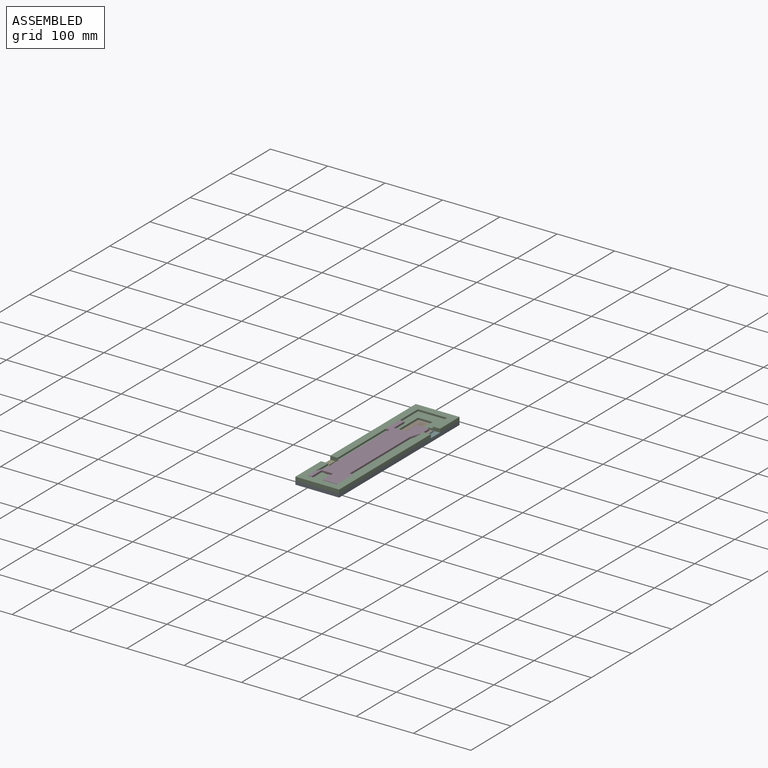
[diagram: assembled view]
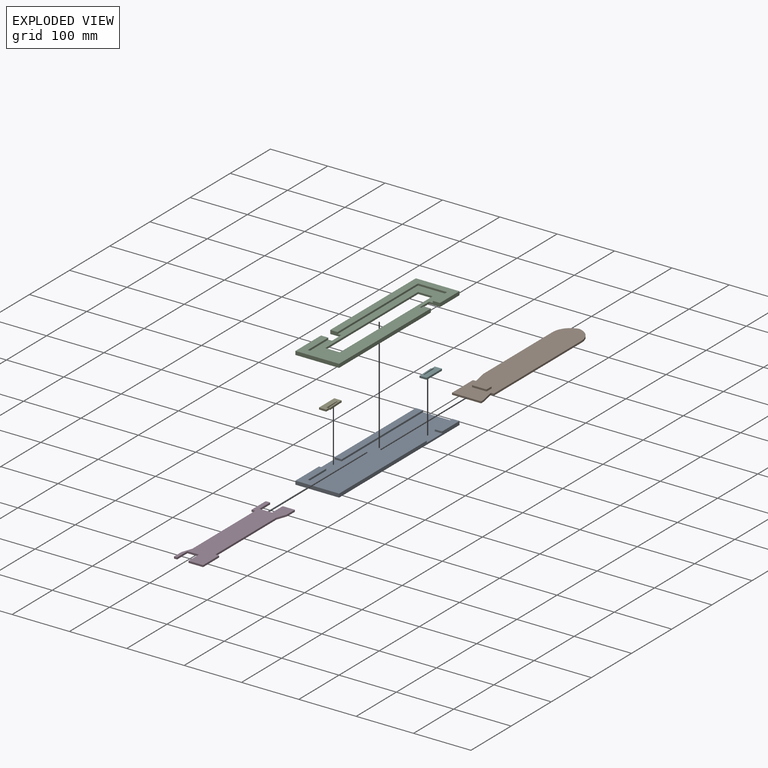
[diagram: exploded view]
GUIDED TOUR — MATED ASSEMBLY (Onshape document 58f78aaa9ea4b90f86e52590, AutoMate assembly 58f78aaa9ea4b90f86e52590_932517b646316d9960da9e35_be1da2eec5c24967967862c9_default)

This assembly has 6 components, labeled P0..P5 below (a component is one placed occurrence of a part; the same part can appear more than once), held together by 5 mates. A mate is a constraint between two components; its type names the relative motion it leaves free:
  FASTENED — locks the two components together rigidly (no relative motion),
  SLIDER — leaves translation along the listed axis free.
Axis/direction vectors are unit vectors and 'through' points are millimeter coordinates, both in the assembly's world frame.

MATES
  1. FASTENED "Fastened 3": P4 <-> P0, direction (0.000, 1.000, 0.000) through (-108.01, -219.98, -332.49) mm
  2. SLIDER "Slider 1": P3 <-> P2, axis (0.000, -1.000, 0.000) through (-63.56, -303.13, -326.14) mm
  3. FASTENED "Fastened 2": P5 <-> P0, direction (0.000, -1.000, 0.000) through (-44.51, -98.53, -332.49) mm
  4. SLIDER "Slider 2": P0 <-> P1, axis (0.000, 1.000, 0.000) through (-76.26, -304.06, -332.49) mm
  5. FASTENED "Fastened 1": P0 <-> P2, direction (0.000, 0.000, 1.000) through (-76.26, -316.76, -330.90) mm

ASSEMBLY ORDER
  1. P0 — the base component [order verified]
  2. P4 [order verified]
  3. P5 [order verified]
  4. P1 [order verified]
  5. P2 [order verified]
  6. P3 [order verified]
Order-tag legend:
  [order verified] — this step's position reverses a verified removal order: the component was checked to insert without passing through the ones already placed.

Of the 6 components, 1 carries the full construction recipe — the FeatureScript program that regenerates the part's solid from scratch; the rest are supplied as boundary geometry only.
Each toured component is shown spotlighted twice — in the assembled view, then in the exploded view, where a leader line traces a displaced component back to its assembled socket (saturated green if recipe-attached, orange if geometry-only; every other component desaturated gray) — followed by its recipe or geometry summary and the mates that hold it.
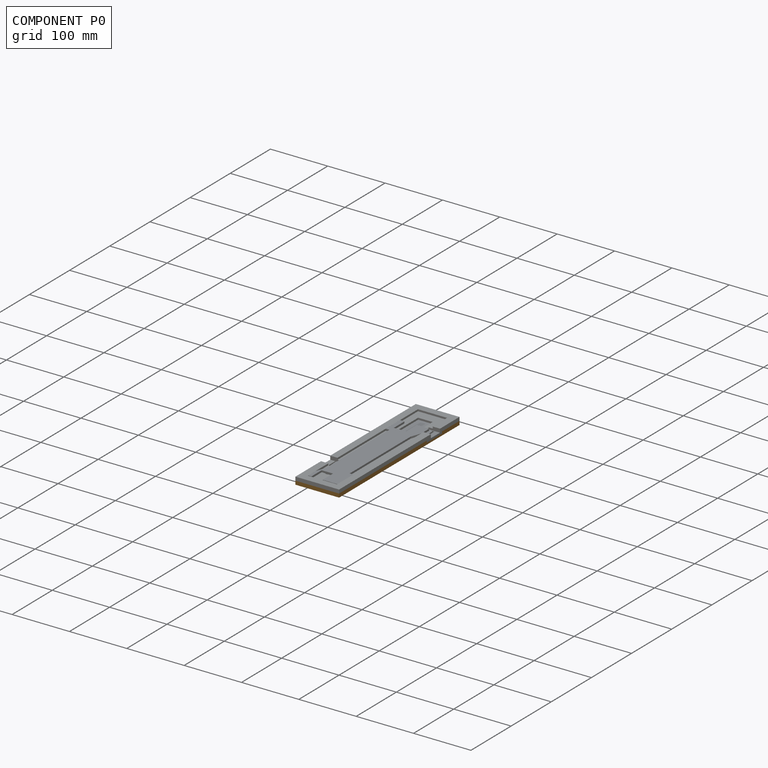
[diagram: component P0 — assembled]
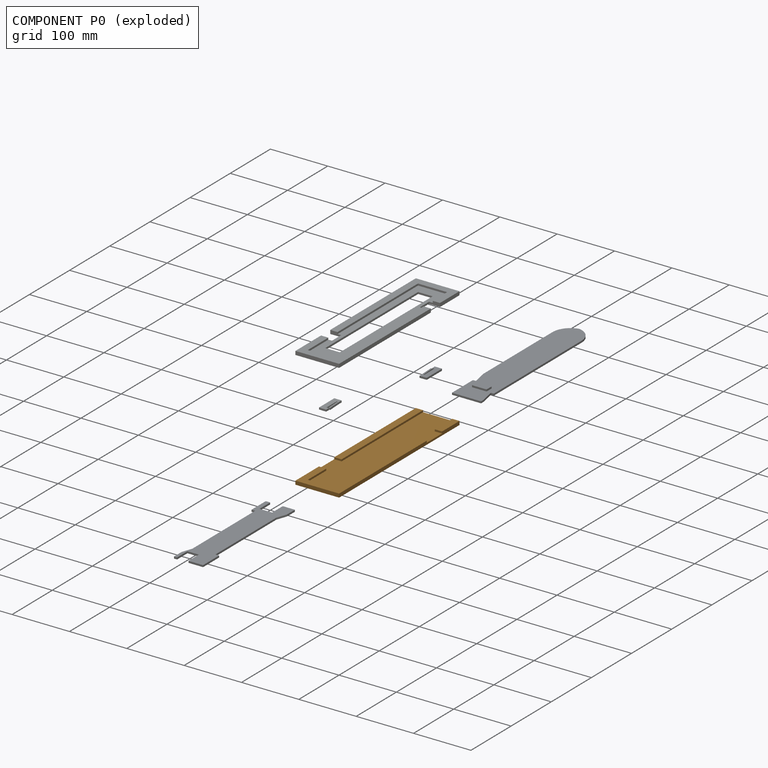
[diagram: component P0 — exploded]
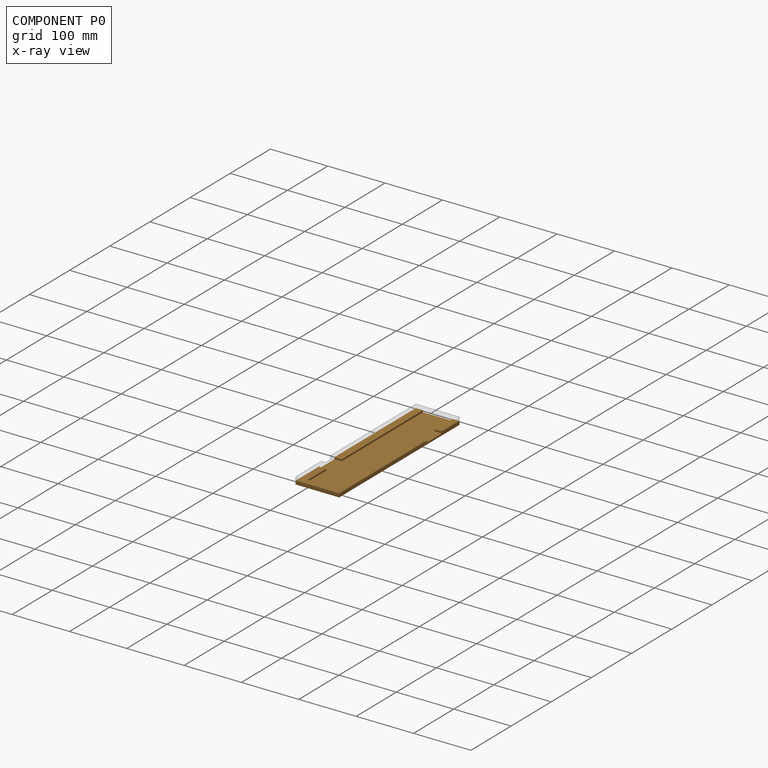
[diagram: component P0 — x-ray view]
COMPONENT P0 — geometry summary (no construction recipe available for this part):
  bounding box: 299.7 x 76.2 x 6.4 mm
  B-rep topology: 1 solid, 18 faces, 96 edges
  volume: 95659 mm^3 (66% of its bounding box)
Held by: FASTENED mate "Fastened 3" to P4; FASTENED mate "Fastened 2" to P5; SLIDER mate "Slider 2" to P1; FASTENED mate "Fastened 1" to P2.
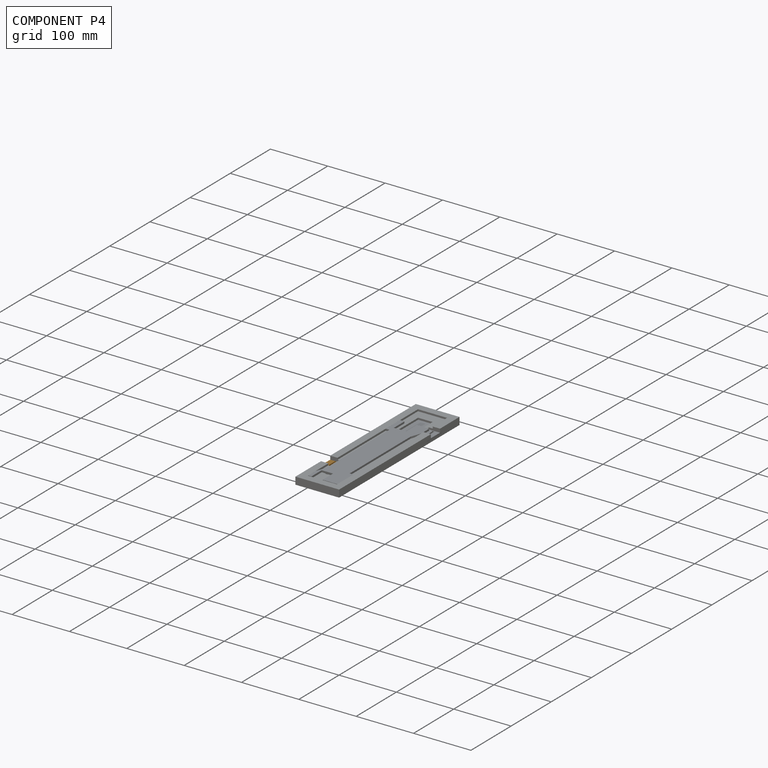
[diagram: component P4 — assembled]
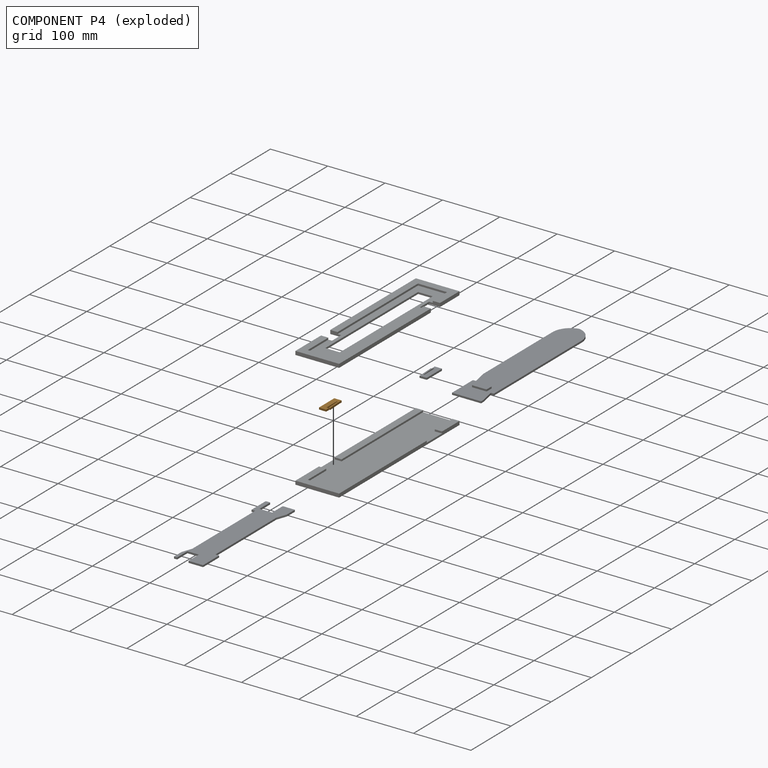
[diagram: component P4 — exploded]
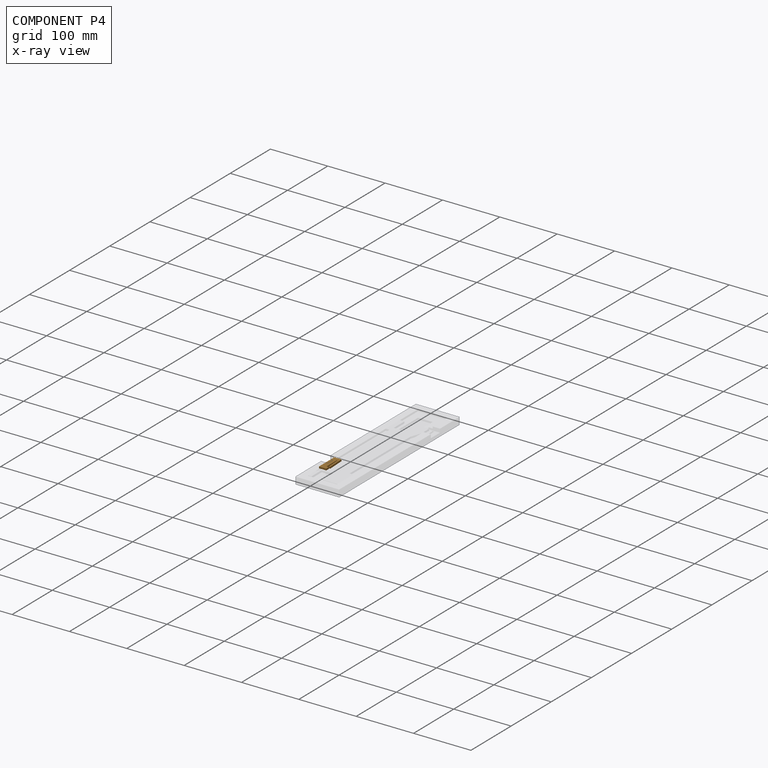
[diagram: component P4 — x-ray view]
COMPONENT P4 — geometry summary (no construction recipe available for this part):
  bounding box: 38.1 x 14.0 x 3.2 mm
  B-rep topology: 1 solid, 45 faces, 258 edges
  volume: 1413 mm^3 (83% of its bounding box)
  symmetry: mirror-symmetric across its z mid-plane
Held by: FASTENED mate "Fastened 3" to P0.
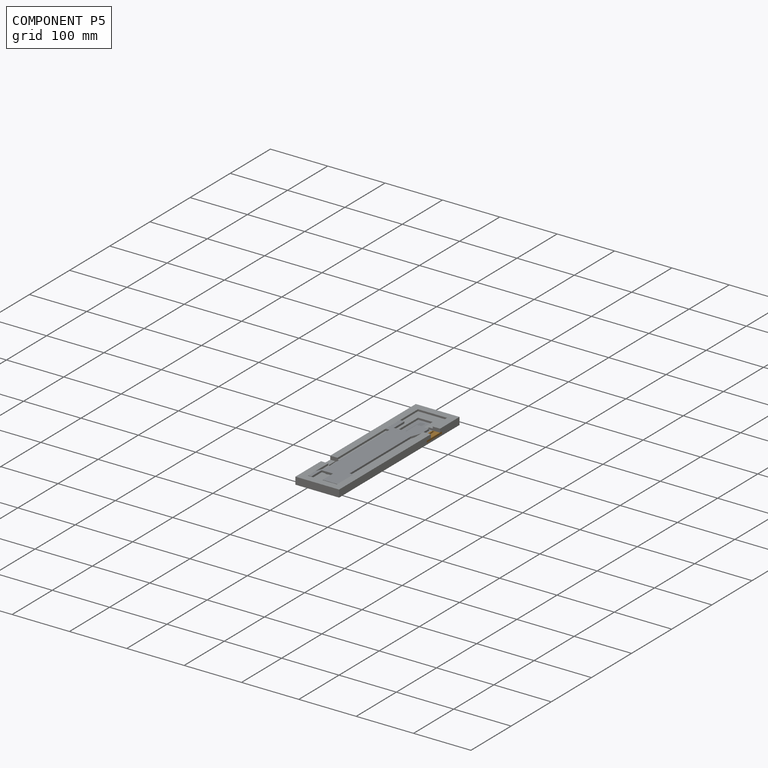
[diagram: component P5 — assembled]
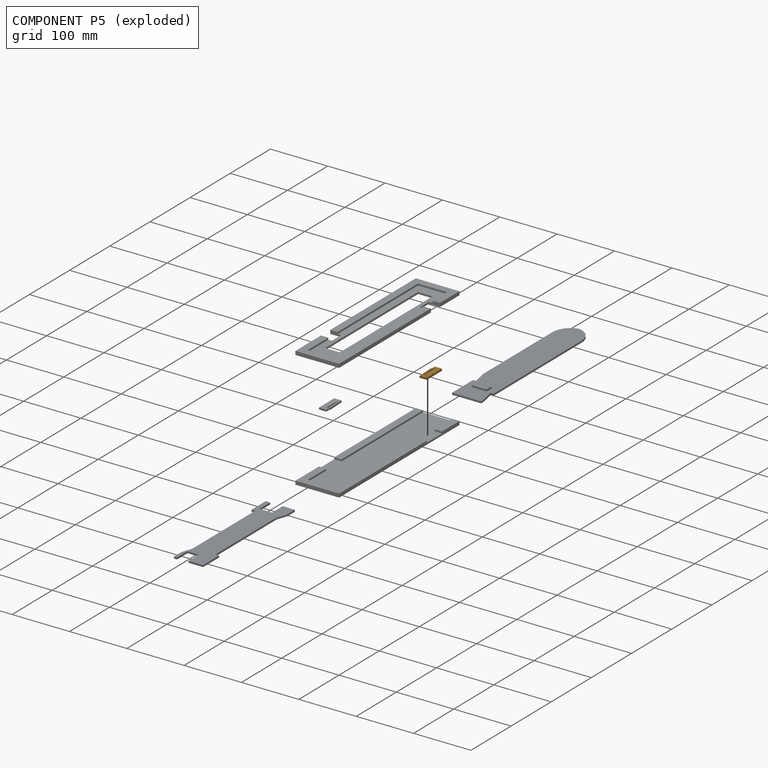
[diagram: component P5 — exploded]
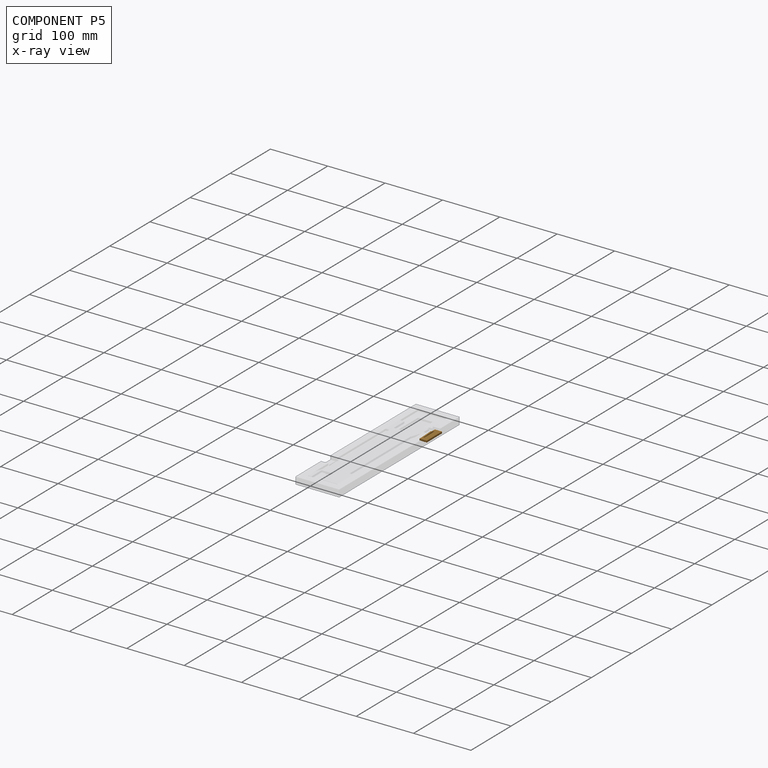
[diagram: component P5 — x-ray view]
COMPONENT P5 — geometry summary (no construction recipe available for this part):
  bounding box: 38.1 x 14.0 x 3.2 mm
  B-rep topology: 1 solid, 45 faces, 258 edges
  volume: 1413 mm^3 (83% of its bounding box)
  symmetry: mirror-symmetric across its z mid-plane
Held by: FASTENED mate "Fastened 2" to P0.
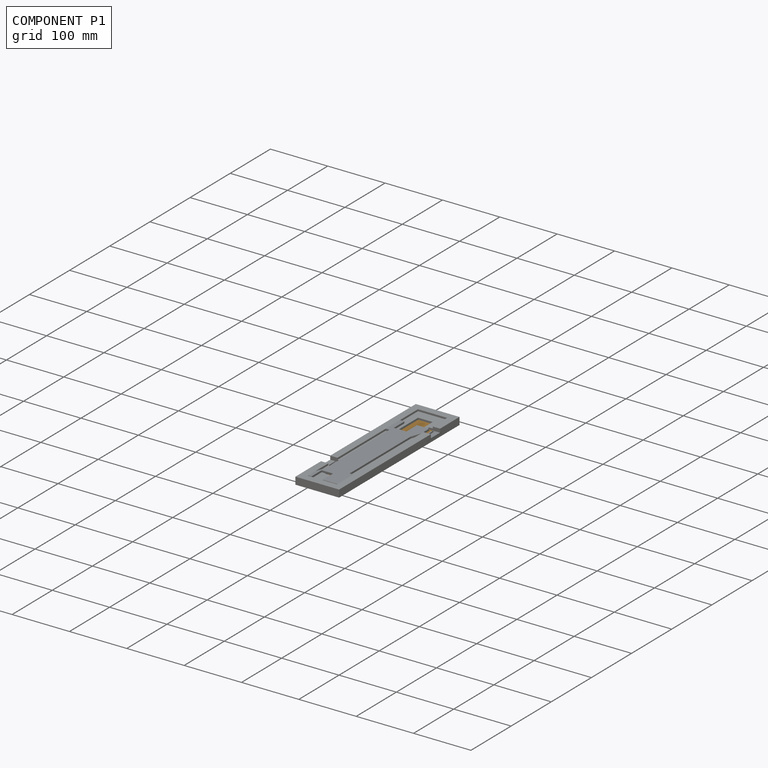
[diagram: component P1 — assembled]
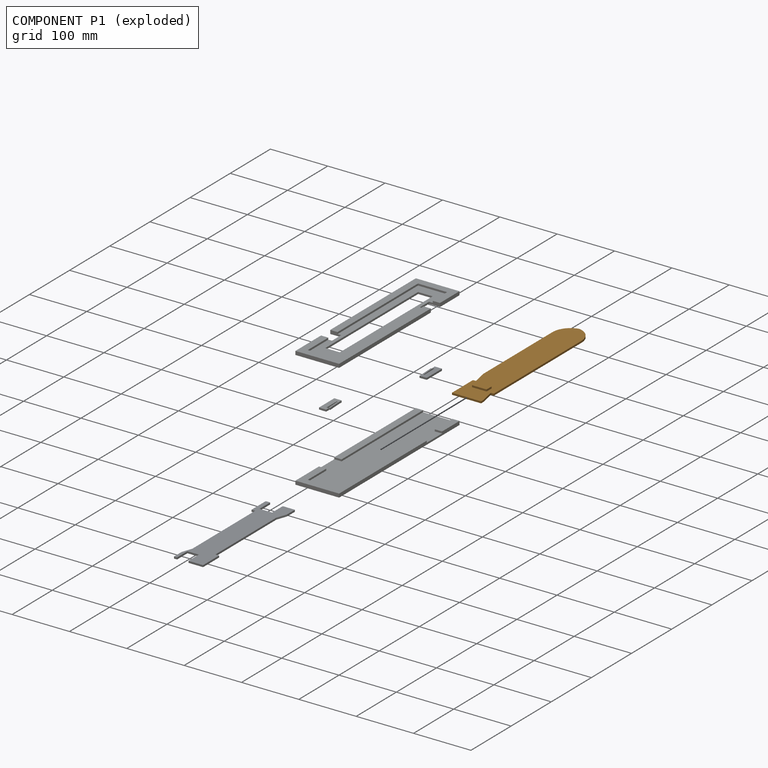
[diagram: component P1 — exploded]
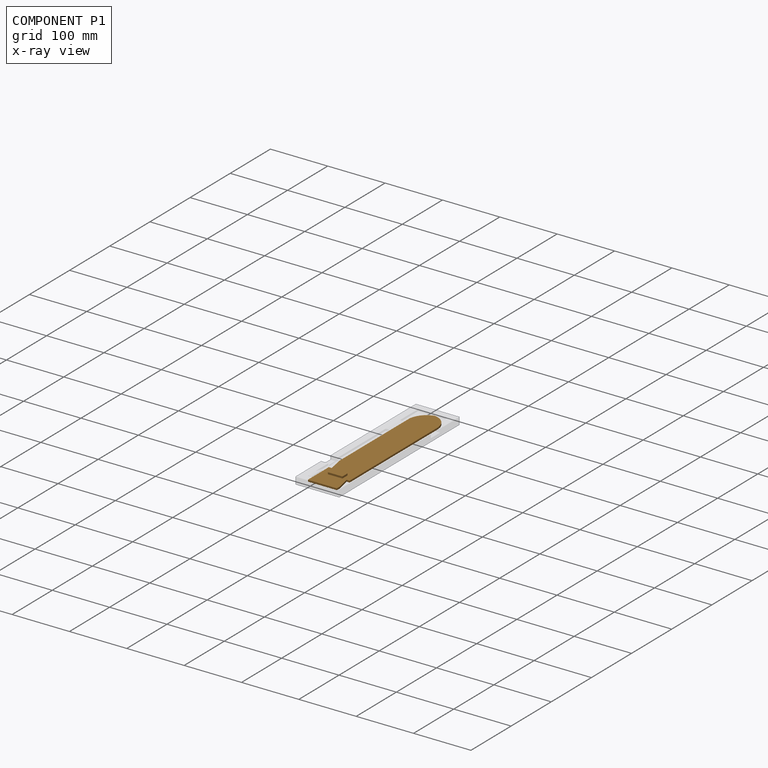
[diagram: component P1 — x-ray view]
COMPONENT P1 — geometry summary (no construction recipe available for this part):
  bounding box: 281.3 x 50.8 x 6.4 mm
  B-rep topology: 1 solid, 20 faces, 102 edges
  volume: 44721 mm^3 (49% of its bounding box)
Held by: SLIDER mate "Slider 2" to P0.
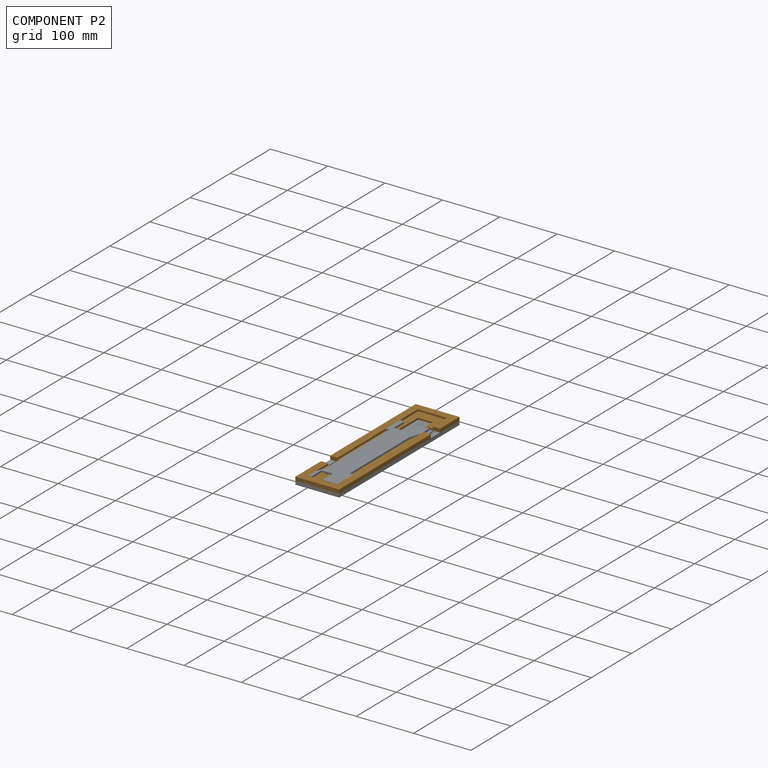
[diagram: component P2 — assembled]
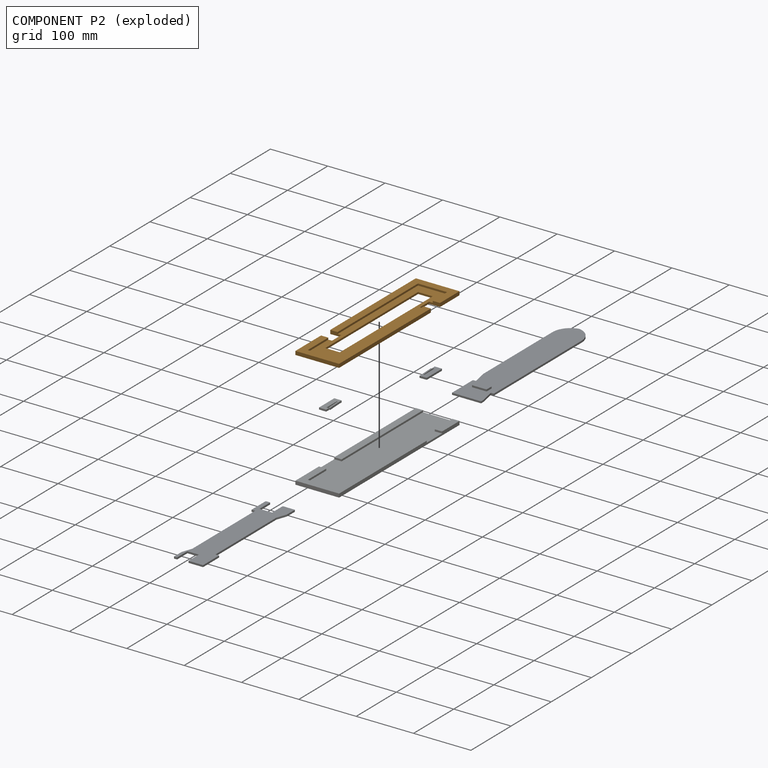
[diagram: component P2 — exploded]
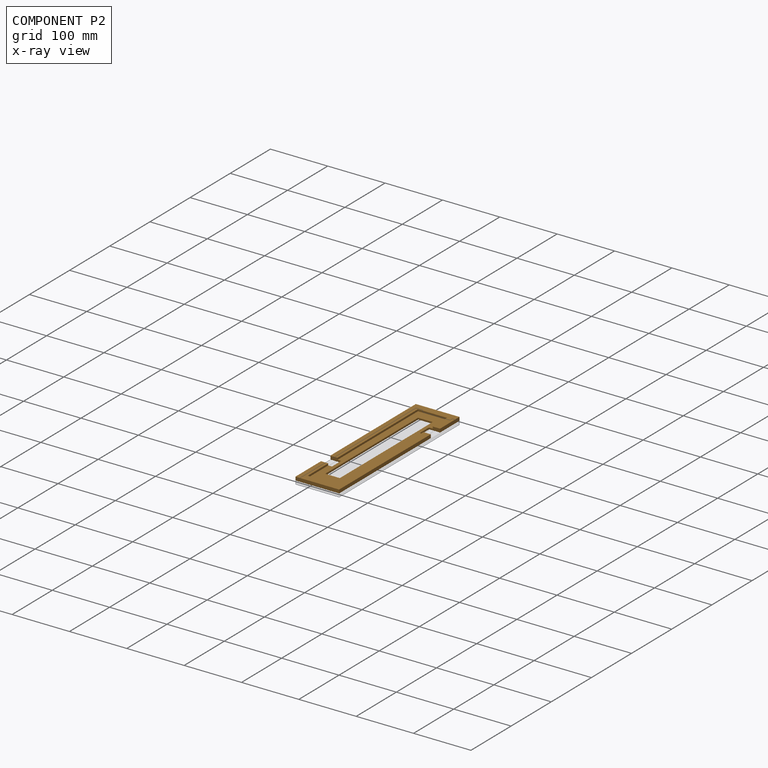
[diagram: component P2 — x-ray view]
COMPONENT P2 — geometry summary (no construction recipe available for this part):
  bounding box: 299.7 x 76.2 x 6.4 mm
  B-rep topology: 1 solid, 26 faces, 144 edges
  volume: 77531 mm^3 (53% of its bounding box)
Held by: SLIDER mate "Slider 1" to P3; FASTENED mate "Fastened 1" to P0.
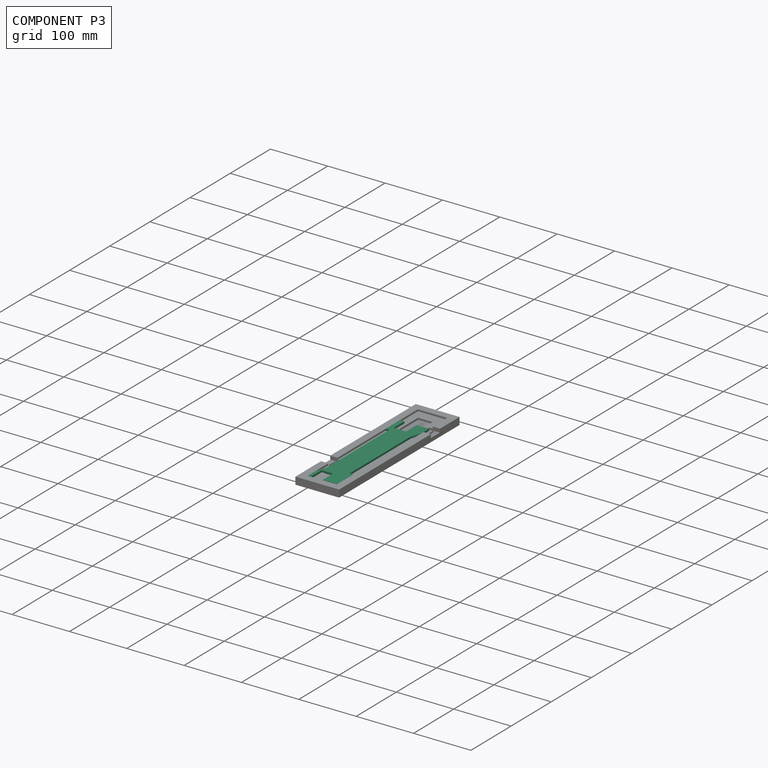
[diagram: component P3 — assembled]
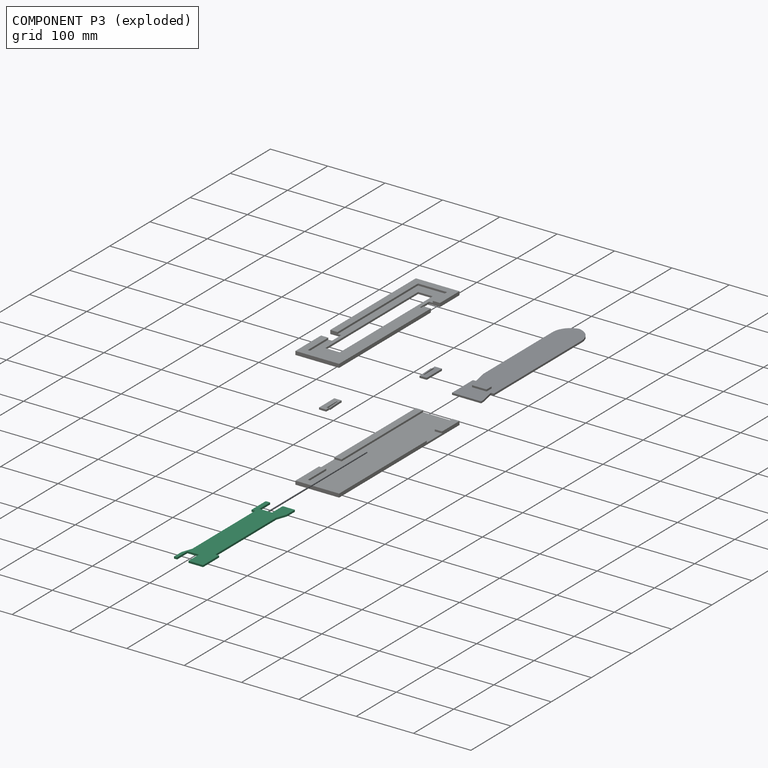
[diagram: component P3 — exploded]
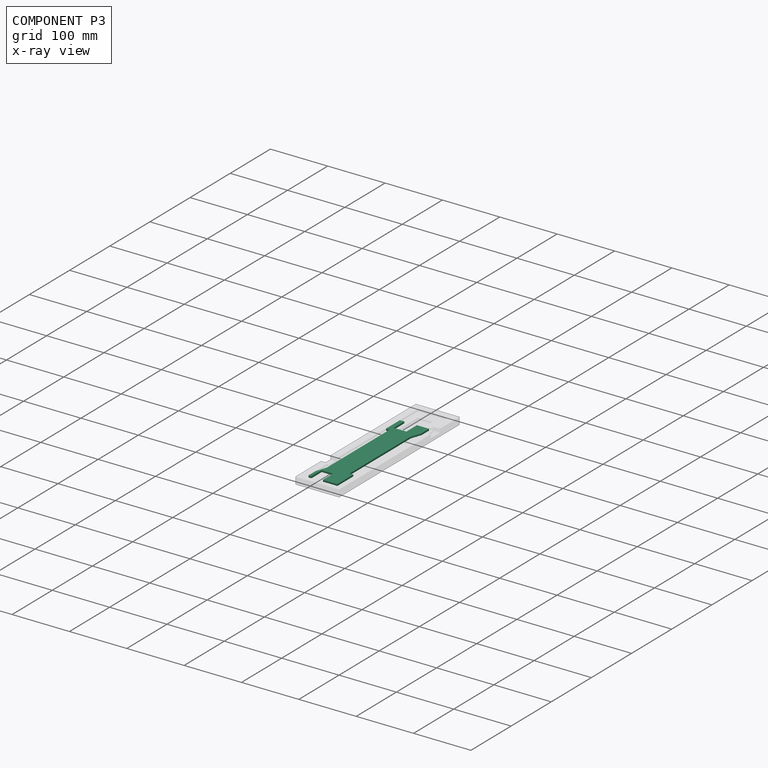
[diagram: component P3 — x-ray view]
COMPONENT P3 — recipe-attached (CADFS 00721134, mesh-verified: the recipe's output STEP matches this component's geometry to below the mesh-comparison resolution (tessellation chordal tolerance ~0.351 mm)).
Held by: SLIDER mate "Slider 1" to P2.
Construction recipe (FeatureScript — the CAD program that rebuilds this solid; sketch coordinates are in the units given by the * unit suffixes, e.g. mm):

FeatureScript 1930;
import(path : "onshape/std/geometry.fs", version : "1930.0");
import(path : "onshape/std/common.fs", version : "1930.0");
const mm = millimeter;
const VERTEX = EntityType.VERTEX;
const EDGE = EntityType.EDGE;
const FACE = EntityType.FACE;
const BODY = EntityType.BODY;
function v(x, y){return vector(x, y);}
function OD(order){return orderDisambiguation(order);}
function OSD(set){return originalSetDisambiguation(set);}
function TD(topology){return topologyDisambiguation(topology);}
function TDD(query){return trueDependencyDisambiguation(query);}
function sQuery(a, b, c) {return sketchEntityQuery(a, b, c);}

annotation { "Feature Type Name" : "Feature", "Feature Type Description" : "" }
export const myFeature = defineFeature(function(context is Context, id is Id, definition is map)
    precondition{}
    {
        {
            var Q0;
            Q0=qCreatedBy(makeId("Top.planeOp"),FACE);
            var sketch = newSketch(context, id + "F0", { "sketchPlane" : qUnion([Q0])});
            skLineSegment(sketch, "E0.bottom", {"start": v(114.3, 25.4) * mm, "end": v(88.64, 25.4) * mm});
            skLineSegment(sketch, "E0.top", {"start": v(114.3, -25.4) * mm, "end": v(95.46, -25.4) * mm});
            skLineSegment(sketch, "E0.left", {"start": v(114.3, 25.4) * mm, "end": v(114.3, -0.13) * mm});
            skLineSegment(sketch, "E0.right", {"start": v(-114.3, 25.4) * mm, "end": v(-114.3, 4.2) * mm});
            skPoint(sketch, "E0.middle", {"position": v(0, 0) * mm});
            skLineSegment(sketch, "E1.bottom", {"start": v(-114.3, 4.2) * mm, "end": v(-87.91, 4.2) * mm});
            skLineSegment(sketch, "E1.top", {"start": v(-114.3, -17.72) * mm, "end": v(-87.91, -17.72) * mm});
            skLineSegment(sketch, "E1.right", {"start": v(-87.91, 4.2) * mm, "end": v(-87.91, -17.72) * mm});
            skLineSegment(sketch, "E2.trimOffspring", {"start": v(-114.3, -17.72) * mm, "end": v(-114.3, -25.4) * mm});
            skLineSegment(sketch, "E3.bottom", {"start": v(114.3, -0.13) * mm, "end": v(88.64, -0.13) * mm});
            skLineSegment(sketch, "E3.top", {"start": v(114.3, -19.88) * mm, "end": v(88.64, -19.88) * mm});
            skLineSegment(sketch, "E3.right", {"start": v(88.64, -0.13) * mm, "end": v(88.64, -19.88) * mm});
            skLineSegment(sketch, "E4.trimOffspring", {"start": v(114.3, -19.88) * mm, "end": v(114.3, -25.4) * mm});
            skLineSegment(sketch, "E5.top", {"start": v(77.5, -19.05) * mm, "end": v(-78.85, -19.05) * mm});
            skLineSegment(sketch, "E5.right", {"start": v(-78.85, -25.4) * mm, "end": v(-78.85, -19.05) * mm});
            skLineSegment(sketch, "E6.trimOffspring", {"start": v(-78.85, -25.4) * mm, "end": v(-114.3, -25.4) * mm});
            skPoint(sketch, "E7.oppositeSnap0", {"position": v(-87.91, -6.75) * mm});
            skLineSegment(sketch, "E8.trimOffspring", {"start": v(-95.05, 25.4) * mm, "end": v(-114.3, 25.4) * mm});
            skLineSegment(sketch, "E9", {"start": v(88.64, 25.4) * mm, "end": v(74.44, 25.4) * mm});
            skLineSegment(sketch, "E10.top", {"start": v(74.44, 19.05) * mm, "end": v(-77.1, 19.05) * mm});
            skLineSegment(sketch, "E10.left", {"start": v(74.44, 25.4) * mm, "end": v(74.44, 19.05) * mm});
            skLineSegment(sketch, "E11", {"start": v(77.5, -19.05) * mm, "end": v(95.46, -25.4) * mm});
            skLineSegment(sketch, "E12", {"start": v(-77.1, 19.05) * mm, "end": v(-95.05, 25.4) * mm});
            skSolve(sketch);
        }
        {
            var Q0;
            Q0=qSketchRegion(id+"F0",true);
            extrude(context, id + "F1", {"entities" : qUnion([Q0]), "depth" : 3.17 * mm, "offsetDistance" : 25.4 * mm});
        }
    });
PROVENANCE & LICENSES
Assembly (occurrences, transforms, mates, per-part STEP geometry): AutoMate dataset, Zenodo record 7776208, CC0.
Construction recipes: CADFS (HuggingFace VladPyatov/CADFS, CC-BY-4.0, layered over the ABC dataset), FeatureScript reconstruction programs keyed by ABC model id.
Join: ABC meta listings map ABC model id -> Onshape documentId; within a shared document, parts are matched by geometric signature (bounding-box dims + volume at 0.1% relative tolerance, exact B-rep face/solid counts).
Verification: 1 of this assembly's 6 components carries a recipe attachment, and every attachment is mesh-verified: the CADFS STEP and the AutoMate member STEP were compared as meshes in their shared local frame (symmetric sampled-point-to-mesh distance); worst across the 1 attachment: below the mesh-comparison resolution (tessellation chordal tolerance ~0.351 mm) on a 234 mm part.
Renders: orthographic iso camera (az 35 / el 25); the floor grid conveys scale (grid pitch printed in each image; no ruler). In the exploded view each component is displaced by its stored offset vector: the offsets alone carry the explosion direction (mate normal/axis signs are not orientation cues and do not encode it), and separation distances are assigned per mate-chain, not proportionally to assembly-order depth.
